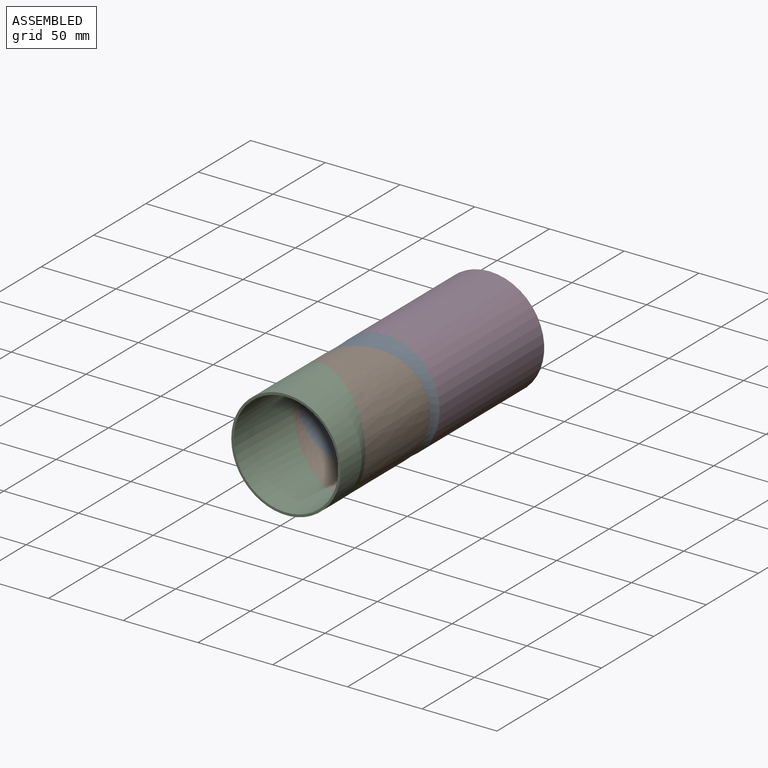
[diagram: assembled view]
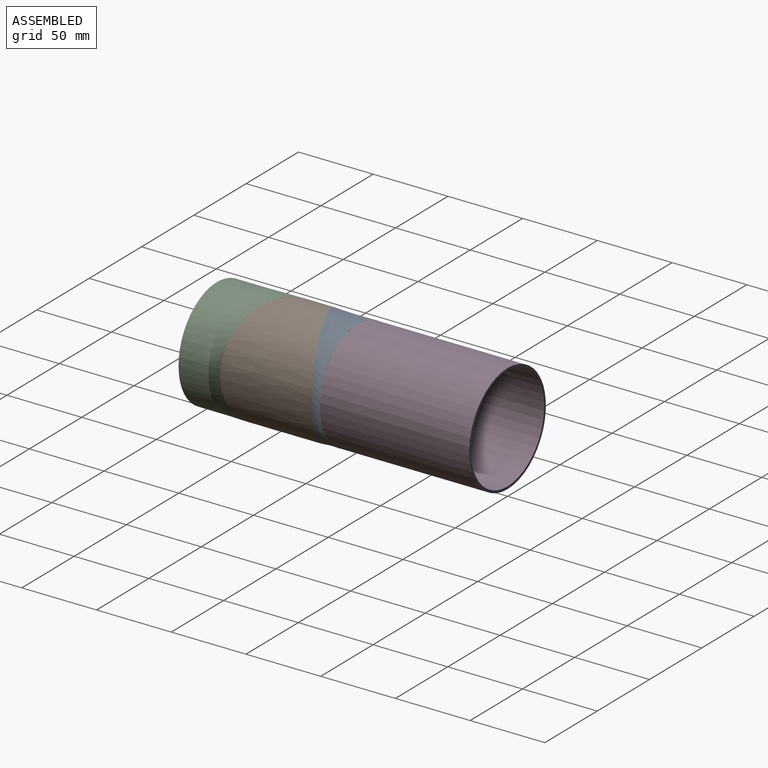
[diagram: assembled view, second angle]
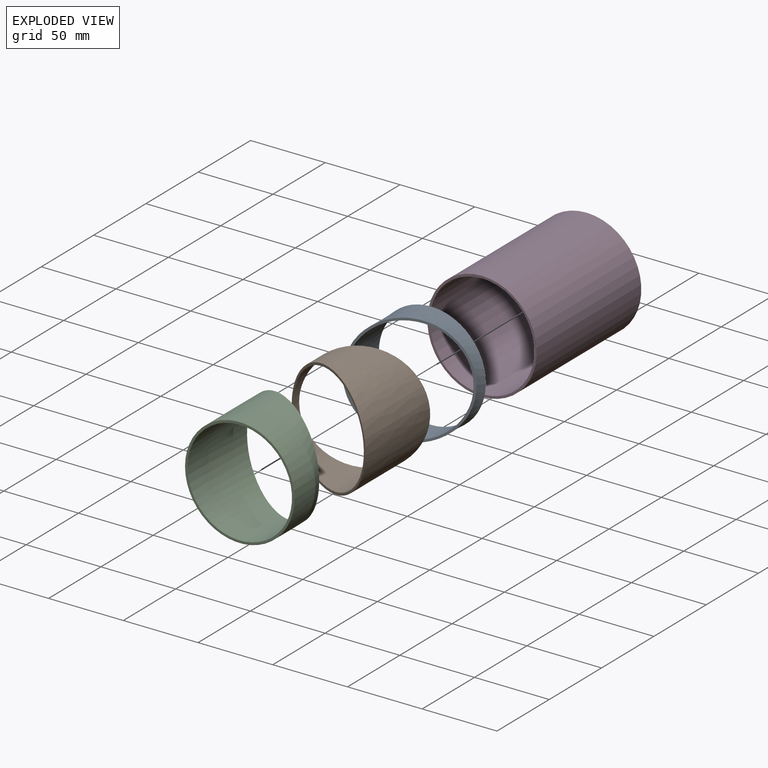
[diagram: exploded view]
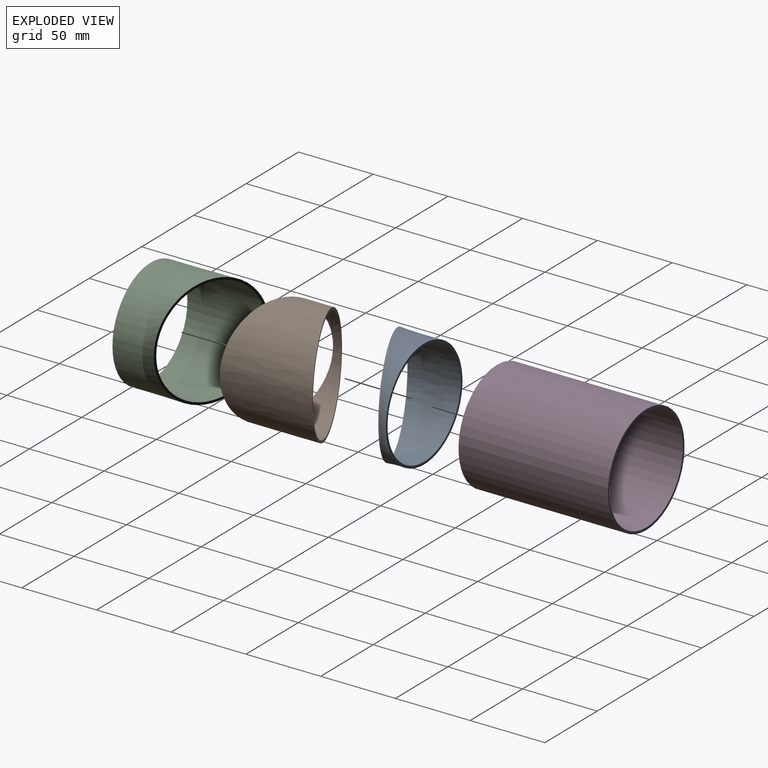
[diagram: exploded view, second angle]
ASSEMBLY  parts=4 mates=3
PART A: 4 faces, bbox 73.2x35.1x75.2 mm
  f0: plane 73.2x73.2mm, normal (0,1,0), area 359.9mm2, adj f2,f3
  f1: plane 75.23x69.51mm, normal (0.38,-0.92,0), area 370mm2, adj f2,f3
  f2: bspline ~75.16x73.16mm, area 4730.5mm2, adj f0,f1
  f3: bspline ~71.96x69.96mm, area 4523.2mm2, adj f0,f1
PART B: 4 faces, bbox 69.5x61.9x75.2 mm
  f0: plane 75.2x69.48mm, normal (-0.38,0.92,0), area 369.9mm2, adj f2,f3
  f1: plane 75.2x69.48mm, normal (-0.38,-0.92,0), area 369.7mm2, adj f2,f3
  f2: bspline ~75.2x69.48mm, area 7533.5mm2, adj f0,f1
  f3: bspline ~72x66.52mm, area 7213mm2, adj f0,f1
PART C: 6 faces, bbox 73.2x55.1x75.2 mm
  f0: plane 75.2x69.48mm, normal (0.38,0.92,0), area 369.9mm2, adj f1,f2
  f1: bspline ~75.2x73.2mm, area 4746.6mm2, adj f0,f4
  f2: bspline ~72x70mm, area 4540mm2, adj f0,f3
  f3: cylinder r=35mm len=70mm, axis (0,1,0), area 4398.2mm2, adj f2,f5
  f4: cylinder r=36.6mm len=73.2mm, axis (0,1,0), area 4599.3mm2, adj f1,f5
  f5: plane 73.2x73.2mm, normal (0,-1,0), area 359.9mm2, adj f3,f4
PART D: 4 faces, bbox 73.2x100x73.2 mm
  f0: cylinder r=35mm len=100mm, axis (0,-1,0), area 21991.1mm2, adj f2,f3
  f1: cylinder r=36.6mm len=100mm, axis (0,-1,0), area 22996.5mm2, adj f2,f3
  f2: plane 73.2x73.2mm, normal (0,1,0), area 359.9mm2, adj f0,f1
  f3: plane 73.2x73.2mm, normal (0,-1,0), area 359.9mm2, adj f0,f1
PLACE A at identity
PLACE B at identity
PLACE C at identity
PLACE D at identity fixed
MATE revolute B.f1 <-> C.f0  axis (-0.38,-0.92,0) through (0,-53.85,0)mm
MATE revolute A.f0 <-> D.f1  axis (0,1,0) through (0,0,0)mm
MATE revolute A.f1 <-> B.f0  axis (0.38,-0.92,0) through (0,-20.71,0)mm
